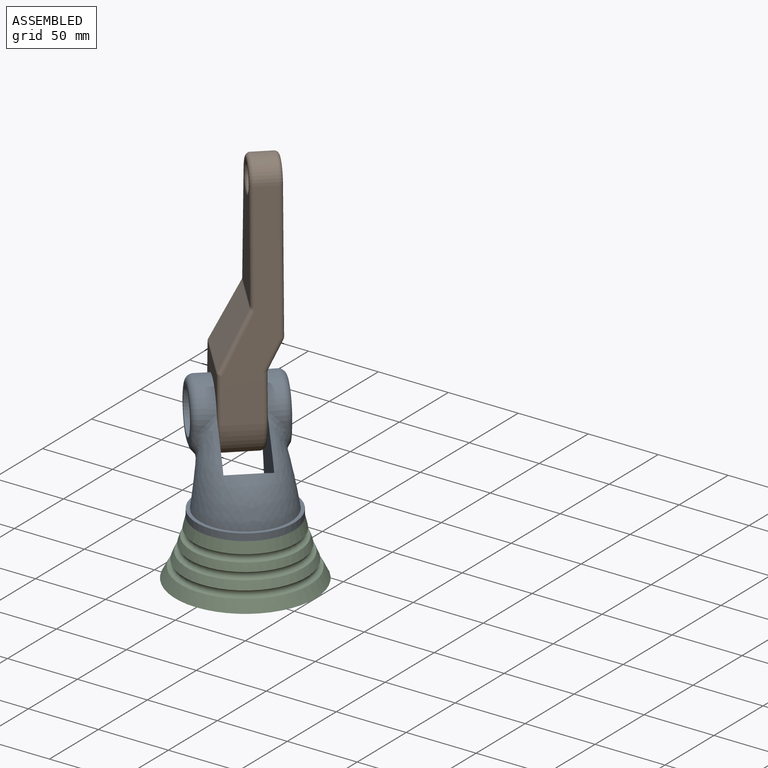
[diagram: assembled view]
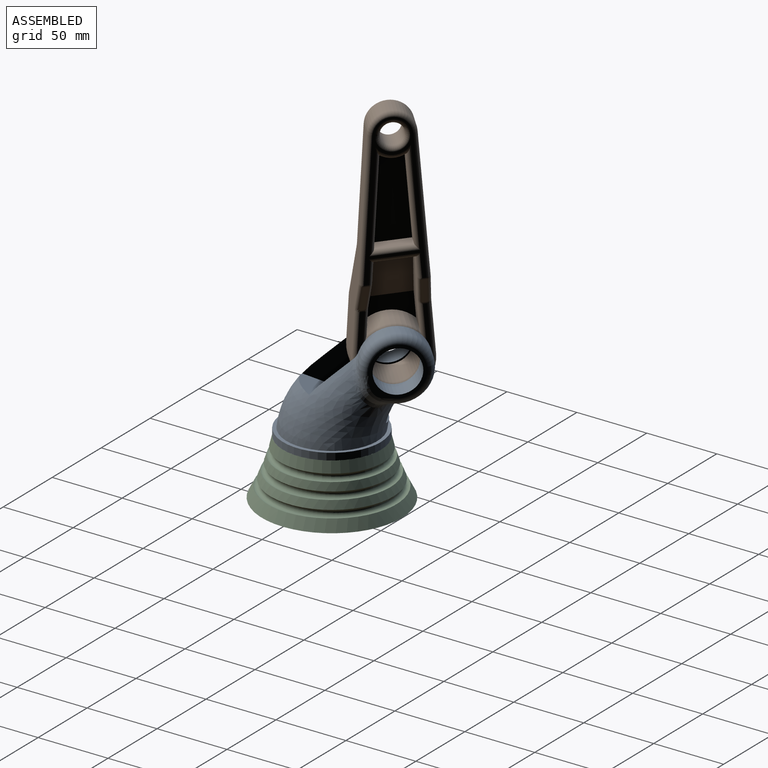
[diagram: assembled view, second angle]
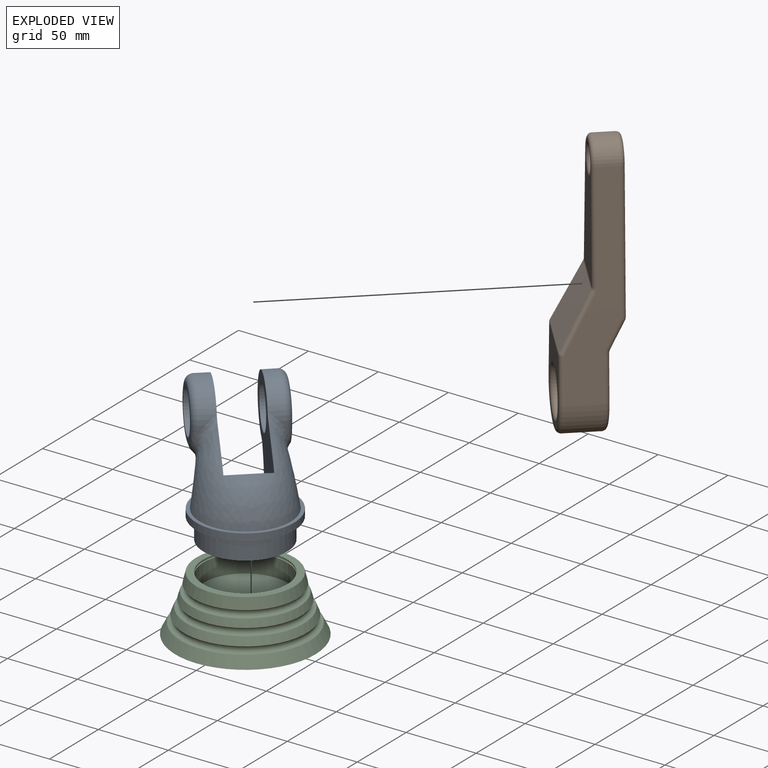
[diagram: exploded view]
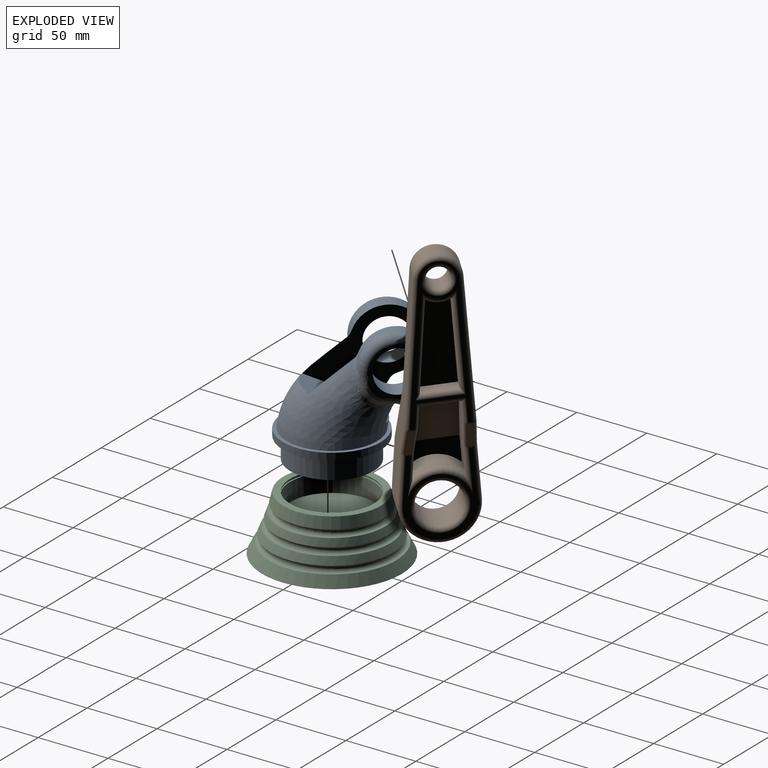
[diagram: exploded view, second angle]
ASSEMBLY  parts=3 mates=2
PART A: 29 faces, bbox 96.6x72.3x94.5 mm
  f0: bspline ~81.29x65mm, area 5835.9mm2, adj f2,f3,f5,f11,f12,f13,f14,f24
  f1: cylinder r=22.5mm len=45mm, axis (0,1,0), area 1015.6mm2, adj f2,f3,f18,f24
  f2: bspline ~20.27x18.63mm, area 111.9mm2, adj f0,f1,f11,f16,f24
  f3: bspline ~24.33x20.94mm, area 112.3mm2, adj f0,f1,f11,f17,f24
  f4: cylinder r=15mm len=30mm, axis (0,-1,0), area 1413.7mm2, adj f10,f24
  f5: plane 70x70mm, normal (0,0,1), area 530.2mm2, adj f0,f6
  f6: cylinder r=35mm len=70mm, axis (0,0,-1), area 1099.6mm2, adj f5,f7
  f7: plane 70x70mm, normal (0,0,-1), area 1021mm2, adj f6,f28
  f8: cylinder r=22.5mm len=45mm, axis (0,1,0), area 1015.6mm2, adj f12,f14,f21,f25
  f9: plane 35x35mm, normal (0,-1,0), area 286.2mm2, adj f19,f20,f21,f22,f23
  f10: plane 35x35mm, normal (0,1,0), area 286.2mm2, adj f4,f15,f16,f17,f18
  f11: bspline ~17.68x16.44mm, area 73.1mm2, adj f0,f2,f3,f15
  f12: bspline ~24.33x20.94mm, area 112.3mm2, adj f0,f8,f13,f19,f25
  f13: bspline ~17.12x16.29mm, area 73.1mm2, adj f0,f12,f14,f20
  f14: bspline ~20.27x18.63mm, area 111.9mm2, adj f0,f8,f13,f22,f25
  f15: bspline ~11.88x11.8mm, area 57mm2, adj f10,f11,f16,f17
  f16: bspline ~13.89x7.88mm, area 51.4mm2, adj f2,f10,f15,f18
  f17: bspline ~12.44x7.06mm, area 53.8mm2, adj f3,f10,f15,f18
  f18: torus R=17.5mm, axis (0,-1,0), area 797.9mm2, adj f1,f10,f16,f17
  f19: bspline ~13.38x7.49mm, area 53.8mm2, adj f9,f12,f20,f21
  f20: bspline ~12.15x12.07mm, area 57mm2, adj f9,f13,f19,f22
  f21: torus R=17.5mm, axis (0,-1,0), area 797.9mm2, adj f8,f9,f19,f22
  f22: bspline ~11.65x6.78mm, area 51.4mm2, adj f9,f14,f20,f21
  f23: cylinder r=15mm len=30mm, axis (0,-1,0), area 1413.7mm2, adj f9,f25
  f24: plane 73.4x62.85mm, normal (0,-1,0), area 1806.7mm2, adj f0,f1,f2,f3,f4,f26
  f25: plane 73.4x62.85mm, normal (0,1,0), area 1806.7mm2, adj f0,f8,f12,f14,f23,f26
  f26: plane 55.2x32.26mm, normal (0.42,0,0.91), area 1671.4mm2, adj f0,f24,f25
  f27: plane 60x60mm, normal (0,0,-1), area 2827.4mm2, adj f28
  f28: cylinder r=30mm len=60mm, axis (0,0,1), area 2827.4mm2, adj f7,f27
PART B: 74 faces, bbox 54.1x40x193.3 mm
  f0: plane 60.11x9mm, normal (-0.99,0,-0.13), area 545.8mm2, adj f19,f20,f22,f53
  f1: plane 59.06x9mm, normal (1,0,0), area 531.5mm2, adj f19,f20,f22,f54
  f2: plane 36x29.72mm, normal (0,0.89,-0.45), area 1099.1mm2, adj f16,f17,f18,f23
  f3: plane 18.73x9.37mm, normal (0,0.89,-0.45), area 42.3mm2, adj f24,f28,f29,f30
  f4: plane 148.67x34mm, normal (0.99,0,0.13), area 2705.2mm2, adj f5,f7,f24,f25,f27,f31,f63,f69
  f5: cylinder r=15mm len=29.87mm, axis (0,1,0), area 631.8mm2, adj f4,f6,f35,f71
  f6: plane 150x34mm, normal (-1,0,0), area 2729.1mm2, adj f5,f7,f36,f39,f40,f41,f60,f65
  f7: cylinder r=25mm len=50mm, axis (0,1,0), area 1964.8mm2, adj f4,f6,f32,f61
  f8: plane 106.29x36.74mm, normal (0,1,0), area 543.1mm2, adj f30,f31,f35,f38,f39,f43,f47,f48
  f9: plane 56.29x44mm, normal (0,-1,0), area 1179mm2, adj f56,f60,f61,f63,f64
  f10: plane 18.73x9.37mm, normal (0,0.89,-0.45), area 41.9mm2, adj f40,f45,f48,f51
  f11: plane 56.29x44mm, normal (0,1,0), area 508.5mm2, adj f27,f28,f32,f36,f37,f42,f45,f46
  f12: plane 39.6x38.73mm, normal (0,-0.89,0.45), area 1602.7mm2, adj f64,f65,f69,f70
  f13: plane 86.29x34.06mm, normal (0,-1,0), area 2040.4mm2, adj f58,f68,f70,f71,f73
  f14: cylinder r=7.5mm len=15mm, axis (0,1,0), area 659.7mm2, adj f58,f59
  f15: cylinder r=15mm len=30mm, axis (0,1,0), area 2261.9mm2, adj f56,f57
  f16: plane 51.5x29mm, normal (-0.99,0,-0.13), area 900.6mm2, adj f2,f18,f21,f23,f29,f33,f37,f38
  f17: plane 53.62x29mm, normal (1,0,0), area 929mm2, adj f2,f18,f21,f23,f46,f47,f49,f51
  f18: plane 31.79x17.62mm, normal (0,1,0), area 369.9mm2, adj f2,f16,f17,f21
  f19: plane 60.11x23.82mm, normal (0,1,0), area 1158.7mm2, adj f0,f1,f20,f22
  f20: cylinder r=15.5mm len=15.77mm, axis (0,1,0), area 149.3mm2, adj f0,f1,f19,f52
  f21: cylinder r=23mm len=31.79mm, axis (0,1,0), area 668.8mm2, adj f16,f17,f18,f42
  f22: plane 23.82x9mm, normal (0,0,1), area 214.4mm2, adj f0,f1,f19,f55
  f23: plane 24.9x11mm, normal (0,0,-1), area 273.9mm2, adj f2,f16,f17,f43
  f24: cylinder r=3mm len=20.47mm, axis (-0.12,0.44,0.89), area 103.2mm2, adj f3,f4,f25,f26
  f25: bspline ~3.33x3.32mm, area 9.2mm2, adj f4,f24,f27,f28
  f26: sphere r=3mm, area 4.3mm2, adj f24,f30,f31
  f27: cylinder r=3mm len=31.77mm, axis (-0.13,0,0.99), area 149.2mm2, adj f4,f11,f25,f32
  f28: cylinder r=3mm len=2.38mm, axis (-1,0,0), area 2.8mm2, adj f3,f11,f25,f33
  f29: cylinder r=3mm len=19.71mm, axis (0.12,-0.44,-0.89), area 95.6mm2, adj f3,f16,f33,f34
  f30: cylinder r=3mm len=2.02mm, axis (-1,0,0), area 2.8mm2, adj f3,f8,f26,f34
  f31: cylinder r=3mm len=96.28mm, axis (-0.13,0,0.99), area 455.9mm2, adj f4,f8,f26,f35
  f32: torus R=22mm, axis (0,1,0), area 369mm2, adj f7,f11,f27,f36
  f33: bspline ~4.27x3.55mm, area 8.9mm2, adj f16,f28,f29,f37
  f34: sphere r=3mm, area 4mm2, adj f29,f30,f38
  f35: torus R=12mm, axis (0,-1,0), area 197.2mm2, adj f5,f8,f31,f39
  f36: cylinder r=3mm len=34.29mm, axis (0,0,-1), area 161.6mm2, adj f6,f11,f32,f41
  f37: cylinder r=3mm len=32.04mm, axis (0.13,0,-0.99), area 94.7mm2, adj f11,f16,f33,f42
  f38: cylinder r=3mm len=16.8mm, axis (0.13,0,-0.99), area 70.1mm2, adj f8,f16,f34,f43
  f39: cylinder r=3mm len=94.29mm, axis (0,0,-1), area 444.3mm2, adj f6,f8,f35,f44
  f40: cylinder r=3mm len=20.07mm, axis (0,-0.45,-0.89), area 98.7mm2, adj f6,f10,f41,f44
  f41: torus R=6mm, axis (1,0,0), area 8.9mm2, adj f6,f36,f40,f45
  f42: torus R=20mm, axis (0,1,0), area 191.3mm2, adj f11,f21,f37,f46
  f43: cylinder r=3mm len=30.52mm, axis (1,0,0), area 127mm2, adj f8,f23,f38,f47
  f44: sphere r=3mm, area 4.2mm2, adj f39,f40,f48
  f45: cylinder r=3mm len=2mm, axis (-1,0,0), area 2.8mm2, adj f10,f11,f41,f49
  f46: cylinder r=3mm len=34.29mm, axis (0,0,1), area 105.9mm2, adj f11,f17,f42,f49
  f47: cylinder r=3mm len=16.4mm, axis (0,0,1), area 68.3mm2, adj f8,f17,f43,f50
  f48: cylinder r=3mm len=2mm, axis (-1,0,0), area 2.8mm2, adj f8,f10,f44,f50
  f49: torus R=6mm, axis (1,0,0), area 8.9mm2, adj f17,f45,f46,f51
  f50: sphere r=3mm, area 4.2mm2, adj f47,f48,f51
  f51: cylinder r=3mm len=20.07mm, axis (0,0.45,0.89), area 98.7mm2, adj f10,f17,f49,f50
  f52: torus R=12.5mm, axis (0,-1,0), area 90.8mm2, adj f8,f20,f53,f54
  f53: cylinder r=3mm len=70.18mm, axis (0.13,0,-0.99), area 301.3mm2, adj f0,f8,f52,f55
  f54: cylinder r=3mm len=68.39mm, axis (0,0,1), area 293.1mm2, adj f1,f8,f52,f55
  f55: cylinder r=3mm len=30.25mm, axis (-1,0,0), area 123.3mm2, adj f8,f22,f53,f54
  f56: torus R=18mm, axis (0,-1,0), area 476.4mm2, adj f9,f15
  f57: torus R=18mm, axis (0,1,0), area 476.4mm2, adj f11,f15
  f58: torus R=10.5mm, axis (0,-1,0), area 254.3mm2, adj f13,f14
  f59: torus R=10.5mm, axis (0,-1,0), area 254.3mm2, adj f8,f14
  f60: cylinder r=3mm len=34.29mm, axis (0,0,1), area 161.6mm2, adj f6,f9,f61,f62
  f61: torus R=22mm, axis (0,-1,0), area 369mm2, adj f7,f9,f60,f63
  f62: sphere r=3mm, area 4.2mm2, adj f60,f64,f65
  f63: cylinder r=3mm len=31.77mm, axis (0.13,0,-0.99), area 149.2mm2, adj f4,f9,f61,f66
  f64: cylinder r=3mm len=39.6mm, axis (1,0,0), area 55.1mm2, adj f9,f12,f62,f66
  f65: cylinder r=3mm len=40.07mm, axis (0,0.45,0.89), area 204.1mm2, adj f6,f12,f62,f67
  f66: sphere r=3mm, area 4mm2, adj f63,f64,f69
  f67: torus R=6mm, axis (1,0,0), area 8.9mm2, adj f6,f65,f68,f70
  f68: cylinder r=3mm len=74.29mm, axis (0,0,1), area 350.1mm2, adj f6,f13,f67,f71
  f69: cylinder r=3mm len=39.71mm, axis (0.12,-0.44,-0.89), area 197.8mm2, adj f4,f12,f66,f72
  f70: cylinder r=3mm len=34.42mm, axis (-1,0,0), area 47.6mm2, adj f12,f13,f67,f72
  f71: torus R=12mm, axis (0,-1,0), area 197.2mm2, adj f5,f13,f68,f73
  f72: bspline ~4.27x3.55mm, area 8.9mm2, adj f4,f69,f70,f73
  f73: cylinder r=3mm len=76.28mm, axis (0.13,0,-0.99), area 360.8mm2, adj f4,f13,f71,f72
PART C: 15 faces, bbox 162.4x162.4x106.5 mm
  f0: torus R=37.56mm, axis (0,0,-1), area 1787.8mm2, adj f1,f14
  f1: torus R=181.52mm, axis (0,0,-1), area 1765mm2, adj f0,f2
  f2: plane 70x70mm, normal (0,0,1), area 1021mm2, adj f1,f3
  f3: cylinder r=30mm len=60mm, axis (0,0,-1), area 188.5mm2, adj f2,f4
  f4: plane 62x62mm, normal (0,0,-1), area 191.6mm2, adj f3,f5
  f5: cylinder r=31mm len=62mm, axis (0,0,-1), area 194.8mm2, adj f4,f6
  f6: plane 62x62mm, normal (0,0,1), area 191.6mm2, adj f5,f7
  f7: cylinder r=30mm len=60mm, axis (0,0,-1), area 2450.4mm2, adj f6,f8
  f8: plane 60x60mm, normal (0,0,1), area 2827.4mm2, adj f7
  f9: plane 100x100mm, normal (0,0,-1), area 7854mm2, adj f10
  f10: torus R=181.52mm, axis (0,0,-1), area 2619.1mm2, adj f9,f11
  f11: torus R=44.99mm, axis (0,0,-1), area 2160.5mm2, adj f10,f12
  f12: torus R=181.52mm, axis (0,0,-1), area 1566.5mm2, adj f11,f13
  f13: torus R=40.87mm, axis (0,0,-1), area 1953.8mm2, adj f12,f14
  f14: torus R=181.52mm, axis (0,0,-1), area 1361.3mm2, adj f0,f13
PLACE A rot(axis=(0,0,1),132.6deg) t=(0,0,40)mm
PLACE B rot(axis=(0.04,0.09,-0.99),47.6deg) t=(-5.32,42.68,92.89)mm
PLACE C at identity fixed
MATE revolute A.f1 <-> B.f7  axis (0.74,0.68,0) through (-23.71,25.74,92.89)mm
MATE revolute C.f0 <-> A.f6  axis (0,0,1) through (0,0,40)mm
